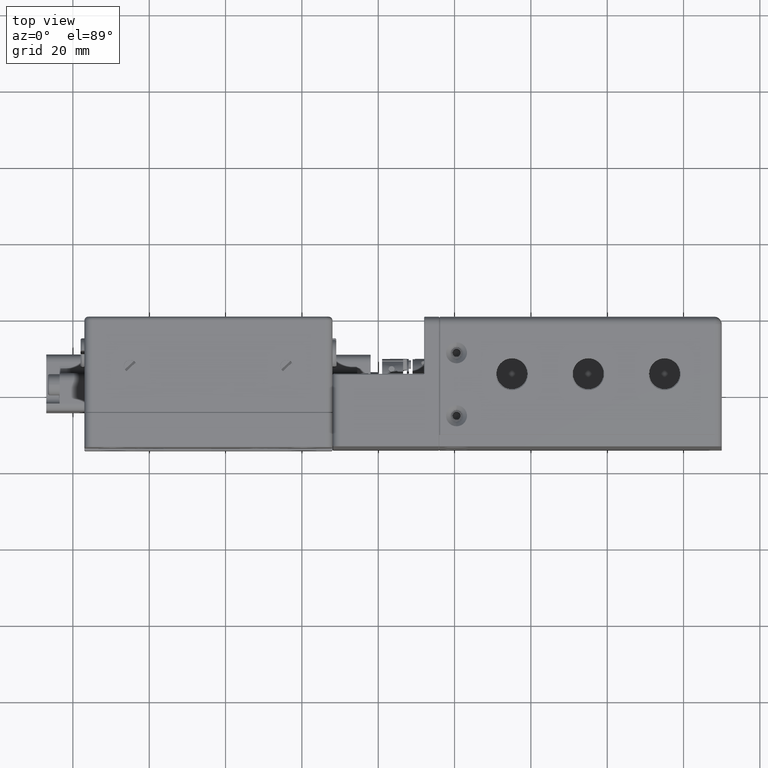
[diagram: clean part render]
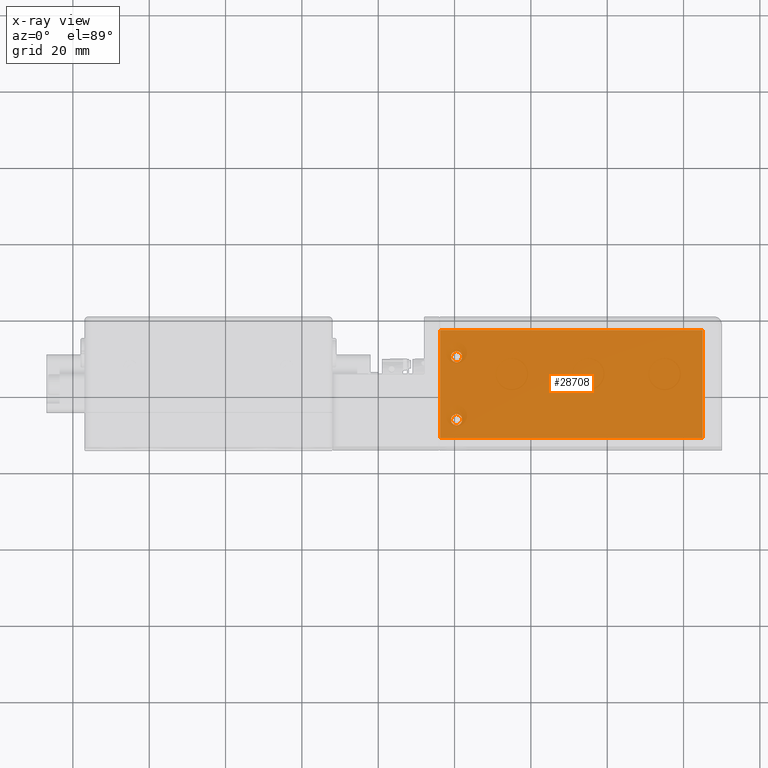
[diagram: x-ray — body ghosted, one internal face saturated and labeled with its STEP entity id]
A machine part, top view, then the same camera in x-ray: the body is ghosted and one INTERNAL B-rep face — a face not visible from any outside direction — is saturated and labeled: STEP entity #28708.
In plain terms, the highlighted planar face has unit normal (0, 0, -1).
Its self-contained STEP definition (entity closure, byte-faithful):
#24 = DIRECTION ( 'NONE',  ( 0.000000000000000000, 6.318674922894530326E-17, -1.000000000000000000 ) ) ;
#156 = DIRECTION ( 'NONE',  ( 0.000000000000000000, 6.318674922894530326E-17, -1.000000000000000000 ) ) ;
#802 = EDGE_CURVE ( 'NONE', #46724, #43601, #51082, .T. ) ;
#2329 = AXIS2_PLACEMENT_3D ( 'NONE', #33676, #24, #37638 ) ;
#3555 = FACE_BOUND ( 'NONE', #14870, .T. ) ;
#3887 = EDGE_CURVE ( 'NONE', #43601, #46724, #5817, .T. ) ;
#4466 = CARTESIAN_POINT ( 'NONE',  ( 25.01384822868610058, 17.50221016956369979, -28.50000000000000000 ) ) ;
#5817 = CIRCLE ( 'NONE', #37390, 1.449999999999985967 ) ;
#6135 = LINE ( 'NONE', #27318, #51486 ) ;
#6355 = AXIS2_PLACEMENT_3D ( 'NONE', #24168, #41403, #46207 ) ;
#6549 = AXIS2_PLACEMENT_3D ( 'NONE', #38529, #46985, #8576 ) ;
#7005 = VERTEX_POINT ( 'NONE', #40810 ) ;
#8576 = DIRECTION ( 'NONE',  ( -1.000000000000000000, 0.000000000000000000, 0.000000000000000000 ) ) ;
#8796 = CARTESIAN_POINT ( 'NONE',  ( 25.01384822868610058, -10.79778983043629914, -28.50000000000000000 ) ) ;
#12463 = LINE ( 'NONE', #51728, #33305 ) ;
#14278 = EDGE_CURVE ( 'NONE', #7005, #51913, #33620, .T. ) ;
#14870 = EDGE_LOOP ( 'NONE', ( #27432, #43827 ) ) ;
#15495 = CARTESIAN_POINT ( 'NONE',  ( -43.78615177131394631, 17.50221016956369979, -28.50000000000000000 ) ) ;
#17419 = VECTOR ( 'NONE', #38973, 1000.000000000000000 ) ;
#17928 = VERTEX_POINT ( 'NONE', #15495 ) ;
#18023 = CARTESIAN_POINT ( 'NONE',  ( -43.78615177131394631, -10.79778983043629914, -28.50000000000000000 ) ) ;
#18388 = DIRECTION ( 'NONE',  ( 0.000000000000000000, 6.318674922894530326E-17, -1.000000000000000000 ) ) ;
#18653 = ORIENTED_EDGE ( 'NONE', *, *, #32795, .T. ) ;
#18674 = DIRECTION ( 'NONE',  ( -1.000000000000000000, 0.000000000000000000, 0.000000000000000000 ) ) ;
#21210 = DIRECTION ( 'NONE',  ( -5.454986835620259508E-17, -1.000000000000000000, -1.736809572478229798E-16 ) ) ;
#21350 = CARTESIAN_POINT ( 'NONE',  ( -39.48615177131389942, -5.997789830436289549, -28.50000000000000000 ) ) ;
#21718 = LINE ( 'NONE', #46615, #17419 ) ;
#22759 = EDGE_CURVE ( 'NONE', #27258, #30815, #47483, .T. ) ;
#22934 = EDGE_LOOP ( 'NONE', ( #18653, #33830, #43634, #38810 ) ) ;
#23264 = CARTESIAN_POINT ( 'NONE',  ( -39.48615177131389942, -4.547789830436300029, -28.50000000000000000 ) ) ;
#23897 = FACE_OUTER_BOUND ( 'NONE', #22934, .T. ) ;
#24168 = CARTESIAN_POINT ( 'NONE',  ( -43.98615177131389231, 17.50221016956369979, -28.50000000000000000 ) ) ;
#27258 = VERTEX_POINT ( 'NONE', #8796 ) ;
#27318 = CARTESIAN_POINT ( 'NONE',  ( -43.98615177131389231, 17.50221016956369979, -28.50000000000000000 ) ) ;
#27432 = ORIENTED_EDGE ( 'NONE', *, *, #34778, .T. ) ;
#28612 = EDGE_CURVE ( 'NONE', #17928, #30815, #6135, .T. ) ;
#28708 = ADVANCED_FACE ( 'NONE', ( #3555, #36895, #23897 ), #41688, .F. ) ;
#29123 = CIRCLE ( 'NONE', #43517, 1.449999999999985967 ) ;
#30815 = VERTEX_POINT ( 'NONE', #4466 ) ;
#31831 = DIRECTION ( 'NONE',  ( 1.000000000000000000, -6.463462497152439677E-17, 2.347740546571989912E-16 ) ) ;
#32795 = EDGE_CURVE ( 'NONE', #17928, #47929, #12463, .T. ) ;
#33305 = VECTOR ( 'NONE', #21210, 1000.000000000000000 ) ;
#33620 = CIRCLE ( 'NONE', #6549, 1.449999999999985967 ) ;
#33676 = CARTESIAN_POINT ( 'NONE',  ( -39.48615177131389942, -5.997789830436289549, -28.50000000000000000 ) ) ;
#33830 = ORIENTED_EDGE ( 'NONE', *, *, #36595, .T. ) ;
#34659 = DIRECTION ( 'NONE',  ( -1.000000000000000000, 0.000000000000000000, 0.000000000000000000 ) ) ;
#34778 = EDGE_CURVE ( 'NONE', #51913, #7005, #29123, .T. ) ;
#35169 = VECTOR ( 'NONE', #55943, 1000.000000000000000 ) ;
#36540 = CARTESIAN_POINT ( 'NONE',  ( -39.48615177131389942, -7.447789830436270186, -28.50000000000000000 ) ) ;
#36595 = EDGE_CURVE ( 'NONE', #47929, #27258, #21718, .T. ) ;
#36895 = FACE_BOUND ( 'NONE', #52451, .T. ) ;
#37390 = AXIS2_PLACEMENT_3D ( 'NONE', #21350, #156, #34659 ) ;
#37638 = DIRECTION ( 'NONE',  ( -1.000000000000000000, 0.000000000000000000, 0.000000000000000000 ) ) ;
#38529 = CARTESIAN_POINT ( 'NONE',  ( -39.48615177131389942, 10.50221016956370157, -28.50000000000000000 ) ) ;
#38810 = ORIENTED_EDGE ( 'NONE', *, *, #28612, .F. ) ;
#38973 = DIRECTION ( 'NONE',  ( 1.000000000000000000, -6.463462497152439677E-17, 2.347740546571989912E-16 ) ) ;
#40810 = CARTESIAN_POINT ( 'NONE',  ( -39.48615177131389942, 11.95221016956370086, -28.50000000000000000 ) ) ;
#41403 = DIRECTION ( 'NONE',  ( 2.347740546571989912E-16, 6.318674922894530326E-17, -1.000000000000000000 ) ) ;
#41688 = PLANE ( 'NONE',  #6355 ) ;
#43502 = CARTESIAN_POINT ( 'NONE',  ( 25.01384822868610058, 17.50221016956369979, -28.50000000000000000 ) ) ;
#43517 = AXIS2_PLACEMENT_3D ( 'NONE', #49719, #18388, #18674 ) ;
#43601 = VERTEX_POINT ( 'NONE', #23264 ) ;
#43634 = ORIENTED_EDGE ( 'NONE', *, *, #22759, .T. ) ;
#43827 = ORIENTED_EDGE ( 'NONE', *, *, #14278, .T. ) ;
#46207 = DIRECTION ( 'NONE',  ( 0.000000000000000000, -1.000000000000000000, -6.318674922894530326E-17 ) ) ;
#46615 = CARTESIAN_POINT ( 'NONE',  ( -43.98615177131389231, -10.79778983043629914, -28.50000000000000000 ) ) ;
#46724 = VERTEX_POINT ( 'NONE', #36540 ) ;
#46985 = DIRECTION ( 'NONE',  ( 0.000000000000000000, 6.318674922894530326E-17, -1.000000000000000000 ) ) ;
#47483 = LINE ( 'NONE', #43502, #35169 ) ;
#47929 = VERTEX_POINT ( 'NONE', #18023 ) ;
#49719 = CARTESIAN_POINT ( 'NONE',  ( -39.48615177131389942, 10.50221016956370157, -28.50000000000000000 ) ) ;
#51082 = CIRCLE ( 'NONE', #2329, 1.449999999999985967 ) ;
#51486 = VECTOR ( 'NONE', #31831, 1000.000000000000000 ) ;
#51728 = CARTESIAN_POINT ( 'NONE',  ( -43.78615177131394631, 17.50221016956369979, -28.50000000000000000 ) ) ;
#51913 = VERTEX_POINT ( 'NONE', #55455 ) ;
#52049 = ORIENTED_EDGE ( 'NONE', *, *, #802, .T. ) ;
#52451 = EDGE_LOOP ( 'NONE', ( #52049, #54463 ) ) ;
#54463 = ORIENTED_EDGE ( 'NONE', *, *, #3887, .T. ) ;
#55455 = CARTESIAN_POINT ( 'NONE',  ( -39.48615177131389942, 9.052210169563720044, -28.50000000000000000 ) ) ;
#55943 = DIRECTION ( 'NONE',  ( 5.454986835620259508E-17, 1.000000000000000000, 1.736809572478229798E-16 ) ) ;